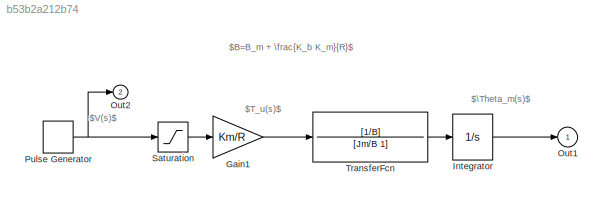
MODEL slx_b53b2a212b74
KIND model
CONFIG AbsTol = auto
CONFIG EnableMultiTasking = off
CONFIG FixedStep = auto
CONFIG MaxStep = auto
CONFIG MinStep = auto
CONFIG PreLoadFcn = initModelData
CONFIG RelTol = 1e-3
CONFIG SampleTimeConstraint = Unconstrained
CONFIG SolverName = VariableStepAuto
CONFIG StartTime = 0.0
CONFIG StopTime = 10.0
BLOCK [Gain] Gain1
  Gain = Km/R
BLOCK [Integrator] Integrator
  Ports = [1, 1]
BLOCK [Outport] Out1
  SignalName = posSimplified
BLOCK [Outport] Out2
  Port = 2
  SignalName = V
BLOCK [DiscretePulseGenerator] Pulse Generator
  Period = 10
  Ports = [0, 1]
  PulseType = Time based
  PulseWidth = 33
BLOCK [Saturate] Saturation
  LowerLimit = -35
  UpperLimit = 35
BLOCK [TransferFcn] TransferFcn
  Denominator = [Jm/B 1]
  Numerator = [1/B]
ANNOTATION (root): $B=B_m + \frac{K_b K_m}{R}$
ANNOTATION (root): $T_u(s)$
ANNOTATION (root): $V(s)$
ANNOTATION (root): $\Theta_m(s)$
LINE Gain1:1 -> TransferFcn:1
LINE Integrator:1 -> Out1:1
NET Pulse Generator:1 -> Out2:1, Saturation:1
LINE Saturation:1 -> Gain1:1
LINE TransferFcn:1 -> Integrator:1
note: NET lines group one-source signal fan-out (src -> all destinations, sorted); 1:1 wires keep LINE
